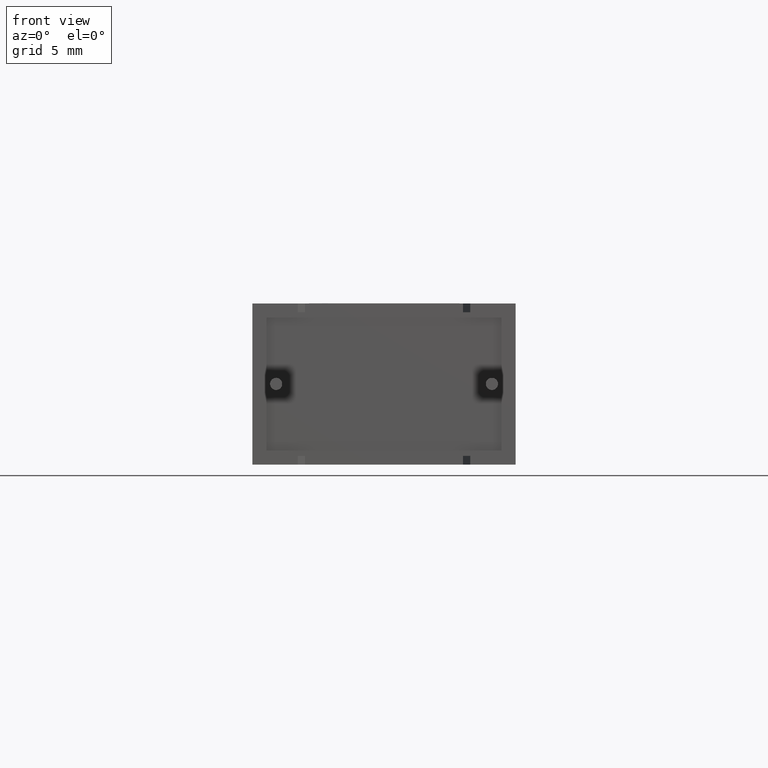
[diagram: clean part render]
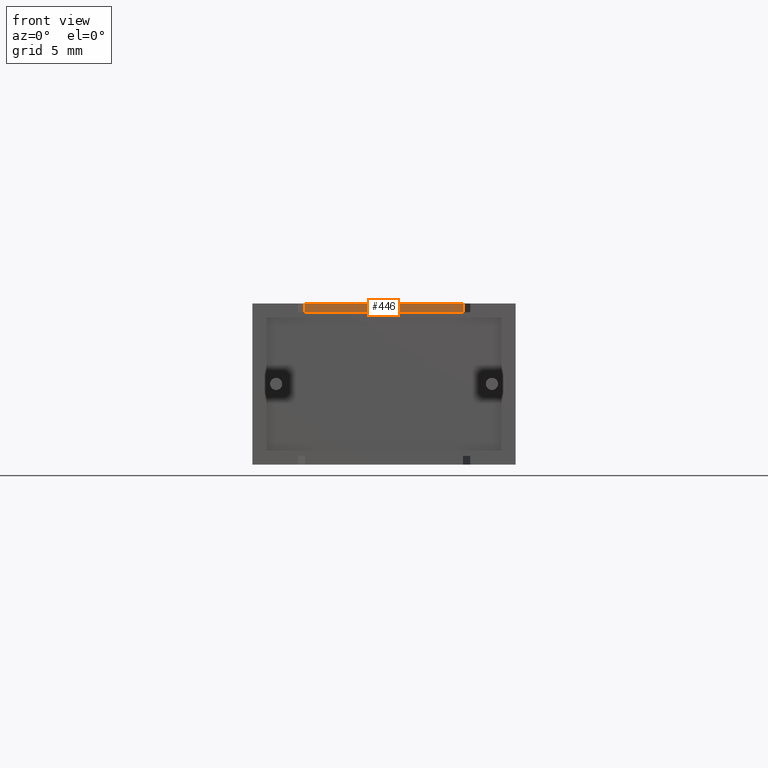
[diagram: same view with one face highlighted and labeled with its STEP entity id]
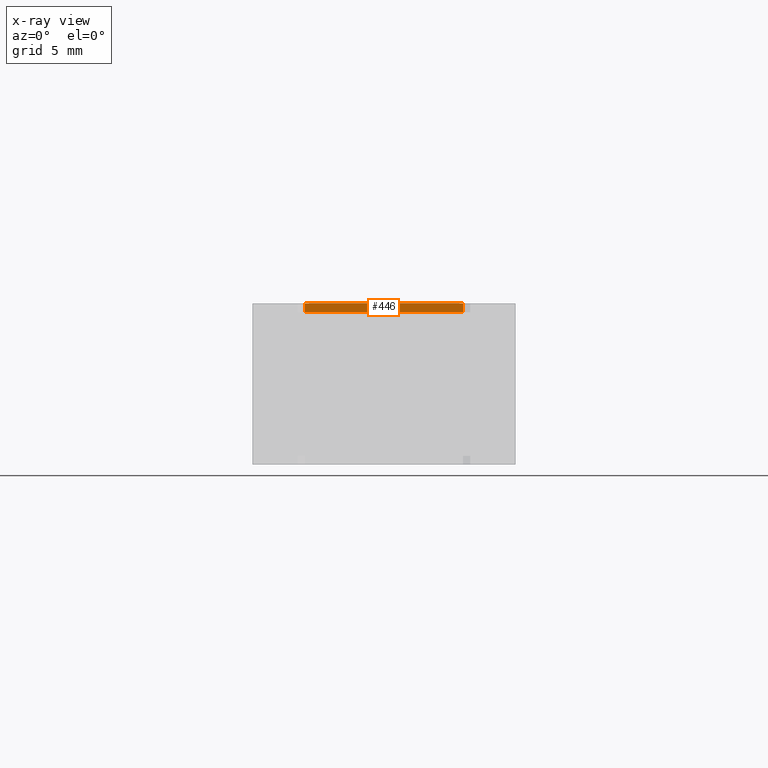
[diagram: x-ray of the same camera — body ghosted, the highlighted face saturated]
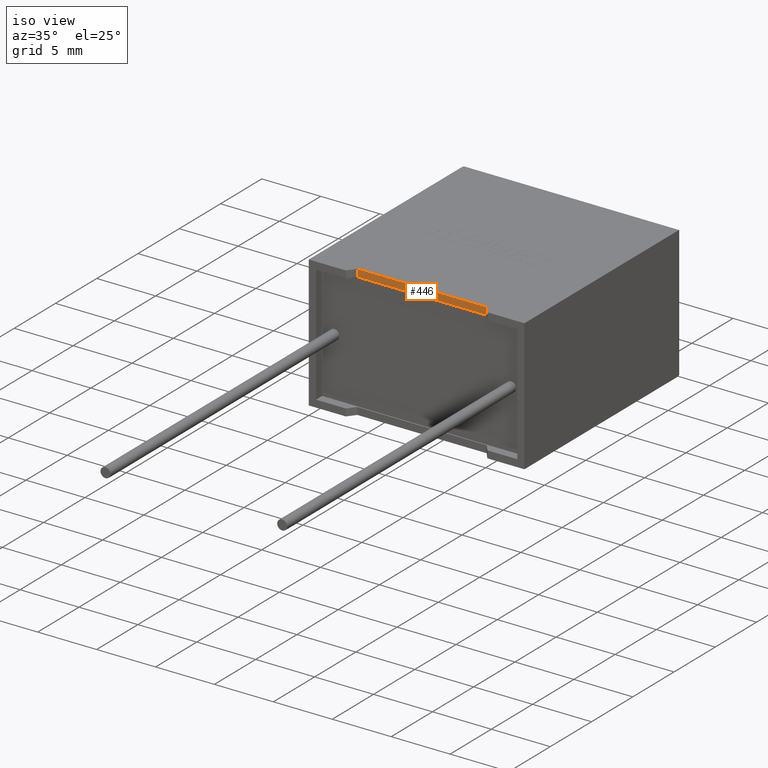
[diagram: same view with one face highlighted and labeled with its STEP entity id]
A machine part, front view. The second image highlights one B-rep face of the part: STEP entity #446.
The next image is the same camera in x-ray: the body ghosted, the highlighted face saturated — about 0% of this face is hidden behind the body in this view.
A second angle (iso view) of the same face is appended — the face is thin or edge-on in the first view.
In plain terms, the highlighted planar face has unit normal (-0, 1, 0).
Its self-contained STEP definition (entity closure, byte-faithful):
#11 = VECTOR ( 'NONE', #2284, 1000.000000000000000 ) ;
#65 = CARTESIAN_POINT ( 'NONE',  ( 14.64180899999999852, 0.6585679999999998202, 11.19999999999999929 ) ) ;
#116 = ORIENTED_EDGE ( 'NONE', *, *, #942, .F. ) ;
#123 = EDGE_LOOP ( 'NONE', ( #2698, #1005, #978, #116 ) ) ;
#253 = CARTESIAN_POINT ( 'NONE',  ( 3.658191000000000859, 0.6585679999999998202, 11.19999999999999929 ) ) ;
#405 = VERTEX_POINT ( 'NONE', #65 ) ;
#446 = ADVANCED_FACE ( 'NONE', ( #2396 ), #2649, .F. ) ;
#479 = CARTESIAN_POINT ( 'NONE',  ( 3.658191000000000859, 0.6585679999999998202, 0.000000000000000000 ) ) ;
#480 = DIRECTION ( 'NONE',  ( -1.381951777164597720E-16, 1.000000000000000000, 0.000000000000000000 ) ) ;
#495 = DIRECTION ( 'NONE',  ( -0.000000000000000000, -0.000000000000000000, 1.000000000000000000 ) ) ;
#513 = DIRECTION ( 'NONE',  ( -0.000000000000000000, -0.000000000000000000, 1.000000000000000000 ) ) ;
#524 = CARTESIAN_POINT ( 'NONE',  ( 3.658191000000000859, 0.6585679999999998202, 10.59000006099999958 ) ) ;
#537 = DIRECTION ( 'NONE',  ( -1.000000000000000000, -1.381951777164597720E-16, 0.000000000000000000 ) ) ;
#726 = EDGE_CURVE ( 'NONE', #2510, #405, #2843, .T. ) ;
#770 = LINE ( 'NONE', #2648, #2813 ) ;
#889 = AXIS2_PLACEMENT_3D ( 'NONE', #1256, #480, #1426 ) ;
#942 = EDGE_CURVE ( 'NONE', #1959, #991, #2867, .T. ) ;
#978 = ORIENTED_EDGE ( 'NONE', *, *, #1119, .T. ) ;
#991 = VERTEX_POINT ( 'NONE', #253 ) ;
#1005 = ORIENTED_EDGE ( 'NONE', *, *, #726, .T. ) ;
#1082 = VECTOR ( 'NONE', #513, 1000.000000000000000 ) ;
#1119 = EDGE_CURVE ( 'NONE', #405, #991, #770, .T. ) ;
#1256 = CARTESIAN_POINT ( 'NONE',  ( 9.150000000000000355, 0.6585680000000005974, 0.000000000000000000 ) ) ;
#1426 = DIRECTION ( 'NONE',  ( -1.000000000000000000, -1.381951777164597720E-16, 0.000000000000000000 ) ) ;
#1534 = VECTOR ( 'NONE', #495, 1000.000000000000000 ) ;
#1625 = LINE ( 'NONE', #2527, #11 ) ;
#1959 = VERTEX_POINT ( 'NONE', #524 ) ;
#2284 = DIRECTION ( 'NONE',  ( -1.000000000000000000, -1.381951777164597720E-16, -1.015646055963656327E-16 ) ) ;
#2396 = FACE_OUTER_BOUND ( 'NONE', #123, .T. ) ;
#2510 = VERTEX_POINT ( 'NONE', #2782 ) ;
#2527 = CARTESIAN_POINT ( 'NONE',  ( 17.69000006100000277, 0.6585680000000017076, 10.59000006100000135 ) ) ;
#2648 = CARTESIAN_POINT ( 'NONE',  ( 9.150000000000000355, 0.6585680000000005974, 11.19999999999999929 ) ) ;
#2649 = PLANE ( 'NONE',  #889 ) ;
#2698 = ORIENTED_EDGE ( 'NONE', *, *, #2733, .F. ) ;
#2733 = EDGE_CURVE ( 'NONE', #2510, #1959, #1625, .T. ) ;
#2782 = CARTESIAN_POINT ( 'NONE',  ( 14.64180899999999852, 0.6585679999999998202, 10.59000006100000135 ) ) ;
#2813 = VECTOR ( 'NONE', #537, 1000.000000000000000 ) ;
#2843 = LINE ( 'NONE', #2871, #1082 ) ;
#2867 = LINE ( 'NONE', #479, #1534 ) ;
#2871 = CARTESIAN_POINT ( 'NONE',  ( 14.64180899999999852, 0.6585679999999998202, 0.000000000000000000 ) ) ;